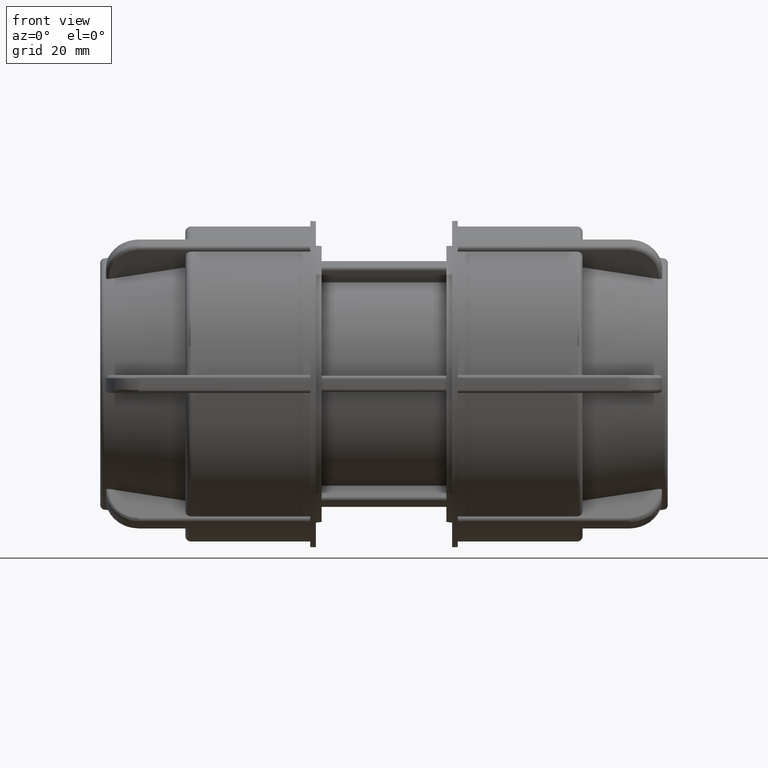
[diagram: clean part render]
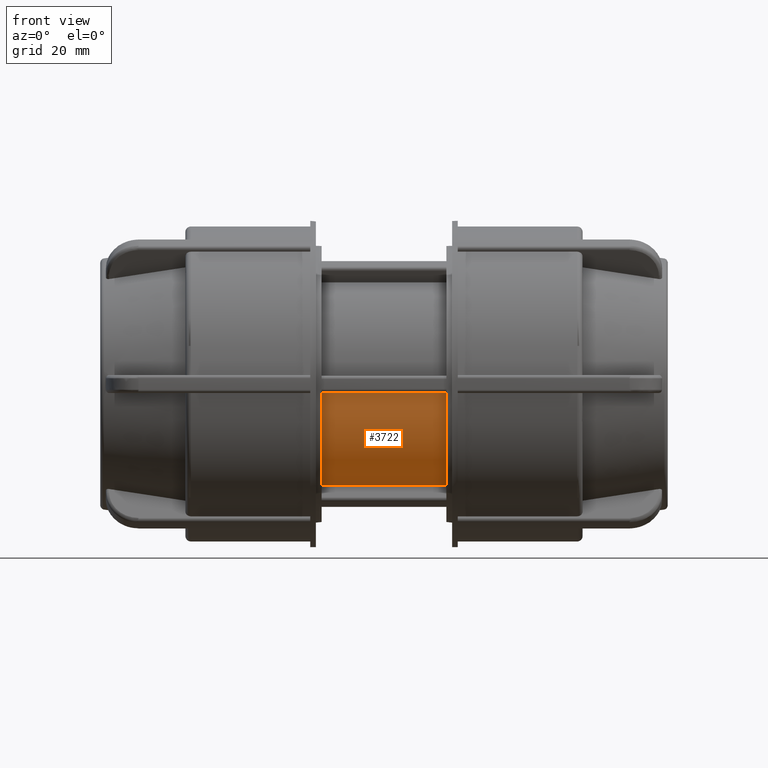
[diagram: same view with one face highlighted and labeled with its STEP entity id]
A machine part, front view. The second image highlights one B-rep face of the part: STEP entity #3722.
In plain terms, the highlighted cylindrical surface (partial cylindrical patch) has radius 27.375 mm, axis along (1, 0, 0).
Its self-contained STEP definition (entity closure, byte-faithful):
#336=FACE_OUTER_BOUND('',#573,.T.);
#573=EDGE_LOOP('',(#2607,#2608,#2609,#2610));
#825=LINE('',#5609,#1053);
#846=LINE('',#5680,#1074);
#1053=VECTOR('',#4493,27.94);
#1074=VECTOR('',#4578,27.94);
#1281=CIRCLE('',#3979,27.375);
#1290=CIRCLE('',#3994,27.375);
#1533=VERTEX_POINT('',#5606);
#1534=VERTEX_POINT('',#5608);
#1547=VERTEX_POINT('',#5648);
#1552=VERTEX_POINT('',#5670);
#1925=EDGE_CURVE('',#1534,#1533,#825,.T.);
#1945=EDGE_CURVE('',#1547,#1534,#1281,.T.);
#1957=EDGE_CURVE('',#1552,#1533,#1290,.T.);
#1961=EDGE_CURVE('',#1552,#1547,#846,.T.);
#2607=ORIENTED_EDGE('',*,*,#1925,.T.);
#2608=ORIENTED_EDGE('',*,*,#1957,.F.);
#2609=ORIENTED_EDGE('',*,*,#1961,.T.);
#2610=ORIENTED_EDGE('',*,*,#1945,.T.);
#3616=CYLINDRICAL_SURFACE('',#4001,27.375);
#3722=ADVANCED_FACE('',(#336),#3616,.T.);
#3979=AXIS2_PLACEMENT_3D('',#5649,#4529,#4530);
#3994=AXIS2_PLACEMENT_3D('',#5672,#4562,#4563);
#4001=AXIS2_PLACEMENT_3D('',#5679,#4576,#4577);
#4493=DIRECTION('',(1.,3.06161699786838E-16,0.));
#4529=DIRECTION('center_axis',(1.,3.06161699786838E-16,0.));
#4530=DIRECTION('ref_axis',(0.,0.,-1.));
#4562=DIRECTION('center_axis',(1.,3.06161699786838E-16,0.));
#4563=DIRECTION('ref_axis',(0.,0.,-1.));
#4576=DIRECTION('center_axis',(1.,3.06161699786838E-16,0.));
#4577=DIRECTION('ref_axis',(-3.49759962317046E-16,1.,0.));
#4578=DIRECTION('',(-1.,-3.06161699786838E-16,0.));
#5606=CARTESIAN_POINT('',(13.97,-15.2375458236315,-22.7422035491887));
#5608=CARTESIAN_POINT('',(-13.97,-15.2375458236315,-22.7422035491887));
#5609=CARTESIAN_POINT('',(6.98500000000001,-15.2375458236315,-22.7422035491887));
#5648=CARTESIAN_POINT('',(-13.97,-27.3140989234498,-1.825));
#5649=CARTESIAN_POINT('Origin',(-13.97,-4.27707894602214E-15,0.));
#5670=CARTESIAN_POINT('',(13.97,-27.3140989234498,-1.825));
#5672=CARTESIAN_POINT('Origin',(13.97,4.27707894602213E-15,0.));
#5679=CARTESIAN_POINT('Origin',(6.98500000000001,2.13853947301107E-15,0.));
#5680=CARTESIAN_POINT('',(6.98500000000002,-27.3140989234498,-1.825));